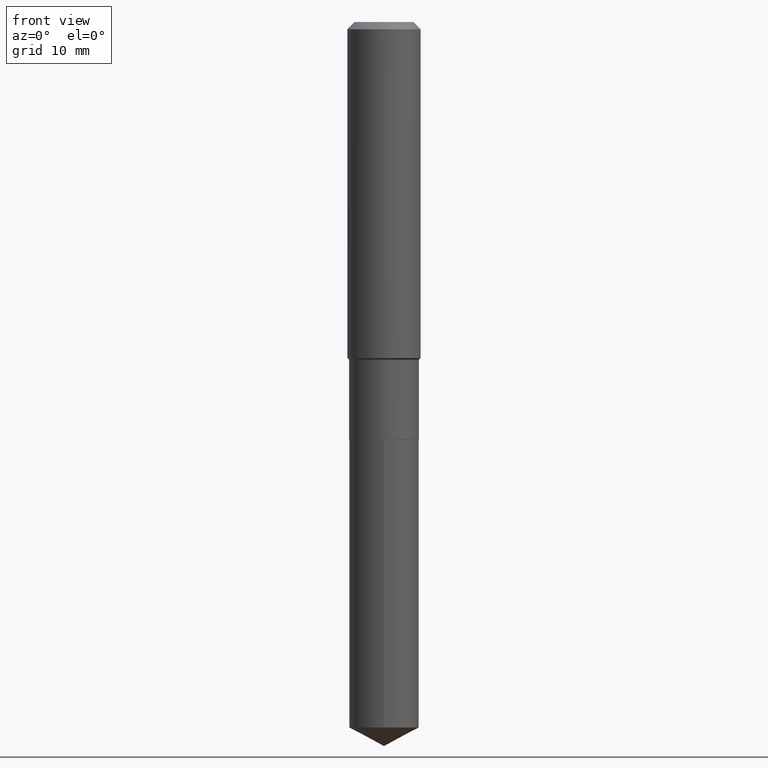
[diagram: clean part render]
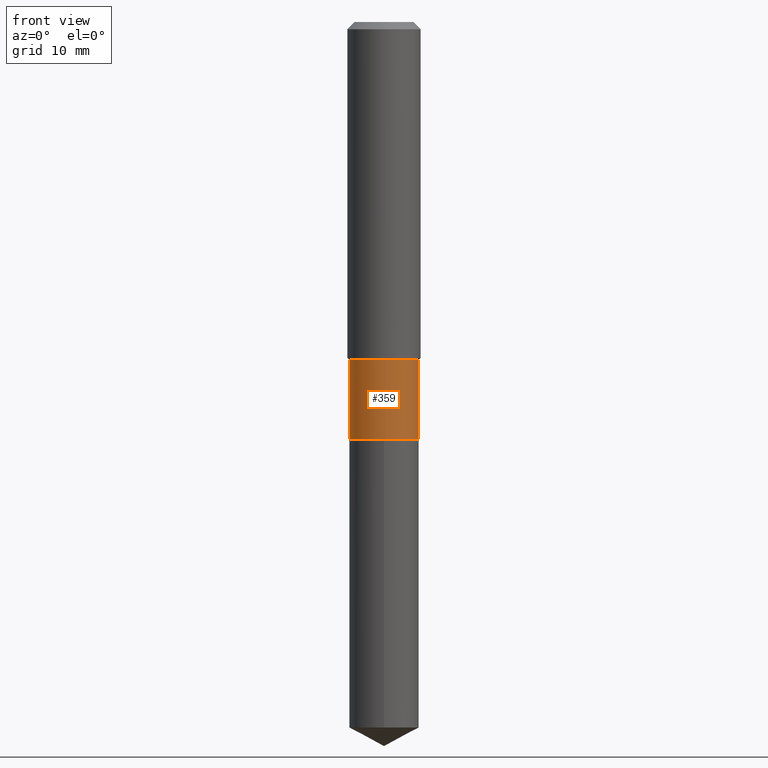
[diagram: same view with one face highlighted and labeled with its STEP entity id]
A machine part, front view. The second image highlights one B-rep face of the part: STEP entity #359.
In plain terms, the highlighted cylindrical surface (edge-blend (fillet) strip) has radius 3.7998 mm, axis along (-0, 0, 1).
Its self-contained STEP definition (entity closure, byte-faithful):
#13 = VERTEX_POINT ( 'NONE', #441 ) ;
#17 = VERTEX_POINT ( 'NONE', #267 ) ;
#30 = VECTOR ( 'NONE', #425, 39.37007874015748143 ) ;
#47 = CARTESIAN_POINT ( 'NONE',  ( 0.1496000000000000107, -7.310812775403659002E-15, -1.794700000000000184 ) ) ;
#49 = CIRCLE ( 'NONE', #180, 0.1496000000000000107 ) ;
#57 = AXIS2_PLACEMENT_3D ( 'NONE', #461, #127, #237 ) ;
#62 = DIRECTION ( 'NONE',  ( 1.000000000000000000, -6.982962677686268288E-15, 0.000000000000000000 ) ) ;
#74 = ORIENTED_EDGE ( 'NONE', *, *, #482, .T. ) ;
#79 = LINE ( 'NONE', #81, #30 ) ;
#81 = CARTESIAN_POINT ( 'NONE',  ( -0.1495999999999999830, 1.062971932697109757E-15, -7.358726895021338760E-30 ) ) ;
#125 = LINE ( 'NONE', #171, #420 ) ;
#127 = DIRECTION ( 'NONE',  ( -2.445468806185136597E-29, 3.491481338843145583E-15, 1.000000000000000000 ) ) ;
#129 = ORIENTED_EDGE ( 'NONE', *, *, #366, .F. ) ;
#168 = ORIENTED_EDGE ( 'NONE', *, *, #247, .T. ) ;
#169 = FACE_OUTER_BOUND ( 'NONE', #202, .T. ) ;
#171 = CARTESIAN_POINT ( 'NONE',  ( 0.1495999999999999830, -1.044651216581865404E-15, 7.294760456590720327E-30 ) ) ;
#180 = AXIS2_PLACEMENT_3D ( 'NONE', #211, #479, #62 ) ;
#192 = CIRCLE ( 'NONE', #355, 0.1495999999999999830 ) ;
#200 = EDGE_CURVE ( 'NONE', #248, #13, #192, .T. ) ;
#202 = EDGE_LOOP ( 'NONE', ( #129, #74, #168, #460 ) ) ;
#211 = CARTESIAN_POINT ( 'NONE',  ( 4.388882866460465205E-29, -6.266161558821793401E-15, -1.794700000000000184 ) ) ;
#230 = DIRECTION ( 'NONE',  ( 1.000000000000000000, -6.982962677686262766E-15, 0.000000000000000000 ) ) ;
#237 = DIRECTION ( 'NONE',  ( 1.000000000000000000, -6.982962677686266711E-15, 4.876176775795936353E-29 ) ) ;
#245 = DIRECTION ( 'NONE',  ( -2.445468806185136597E-29, 3.491481338843145583E-15, 1.000000000000000000 ) ) ;
#247 = EDGE_CURVE ( 'NONE', #471, #13, #125, .T. ) ;
#248 = VERTEX_POINT ( 'NONE', #459 ) ;
#267 = CARTESIAN_POINT ( 'NONE',  ( -0.1496000000000000107, -4.603353132111431549E-15, -1.794700000000000184 ) ) ;
#349 = CARTESIAN_POINT ( 'NONE',  ( 3.548619784655251556E-29, -5.066488570795288817E-15, -1.451100000000000056 ) ) ;
#355 = AXIS2_PLACEMENT_3D ( 'NONE', #349, #245, #230 ) ;
#356 = CYLINDRICAL_SURFACE ( 'NONE', #57, 0.1495999999999999830 ) ;
#359 = ADVANCED_FACE ( 'NONE', ( #169 ), #356, .T. ) ;
#366 = EDGE_CURVE ( 'NONE', #17, #248, #79, .T. ) ;
#394 = DIRECTION ( 'NONE',  ( -2.445468806185136877E-29, 3.491481338843145188E-15, 1.000000000000000000 ) ) ;
#420 = VECTOR ( 'NONE', #394, 39.37007874015748143 ) ;
#425 = DIRECTION ( 'NONE',  ( -2.445468806185136877E-29, 3.491481338843145188E-15, 1.000000000000000000 ) ) ;
#441 = CARTESIAN_POINT ( 'NONE',  ( 0.1495999999999999830, -6.111139787377153629E-15, -1.451100000000000056 ) ) ;
#459 = CARTESIAN_POINT ( 'NONE',  ( -0.1495999999999999830, -4.603353132111431549E-15, -1.451100000000000056 ) ) ;
#460 = ORIENTED_EDGE ( 'NONE', *, *, #200, .F. ) ;
#461 = CARTESIAN_POINT ( 'NONE',  ( 0.000000000000000000, 0.000000000000000000, 0.000000000000000000 ) ) ;
#471 = VERTEX_POINT ( 'NONE', #47 ) ;
#479 = DIRECTION ( 'NONE',  ( -2.445468806185136597E-29, 3.491481338843145583E-15, 1.000000000000000000 ) ) ;
#482 = EDGE_CURVE ( 'NONE', #17, #471, #49, .T. ) ;